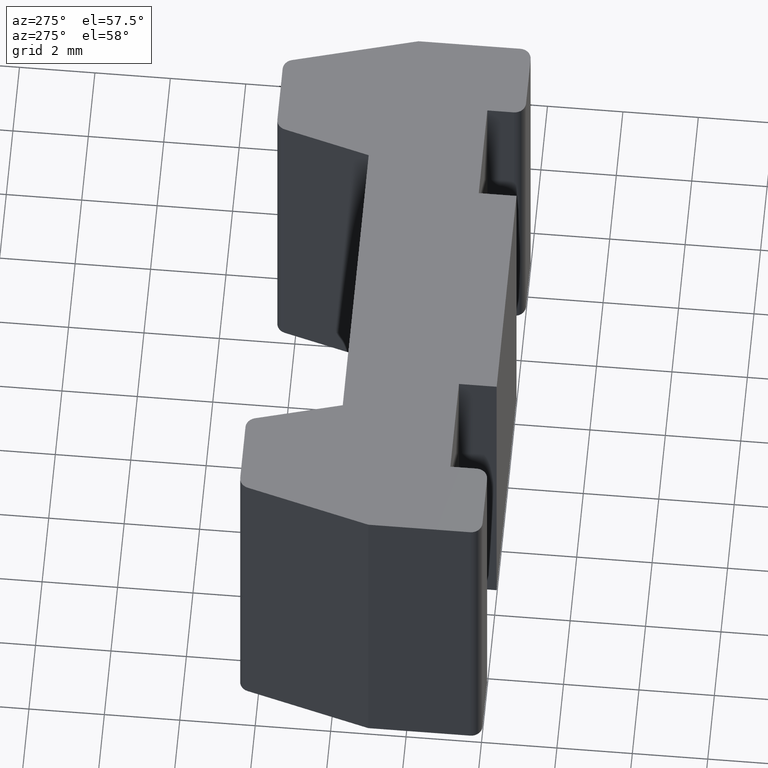
[diagram: clean part render]
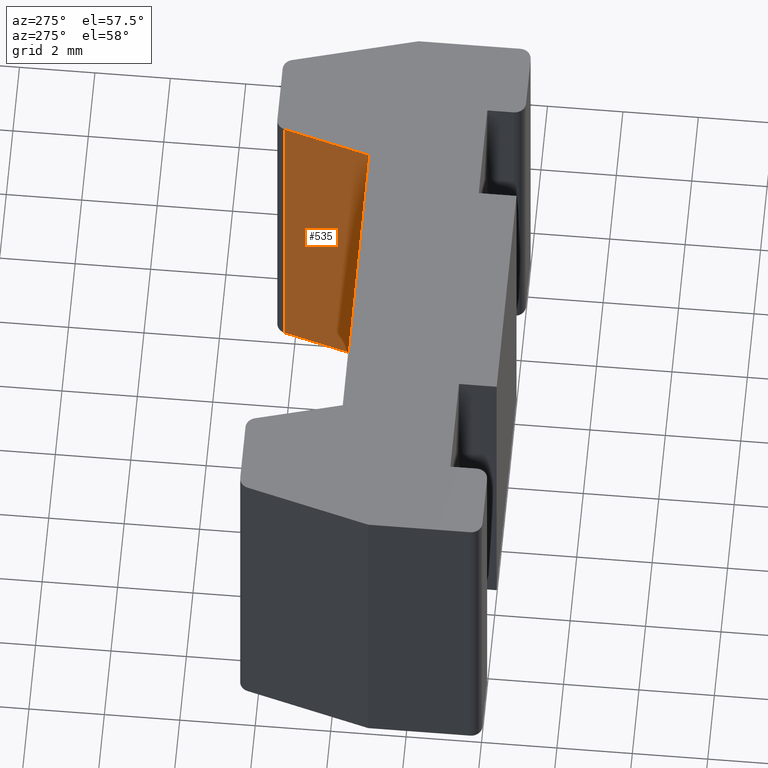
[diagram: same view with one face highlighted and labeled with its STEP entity id]
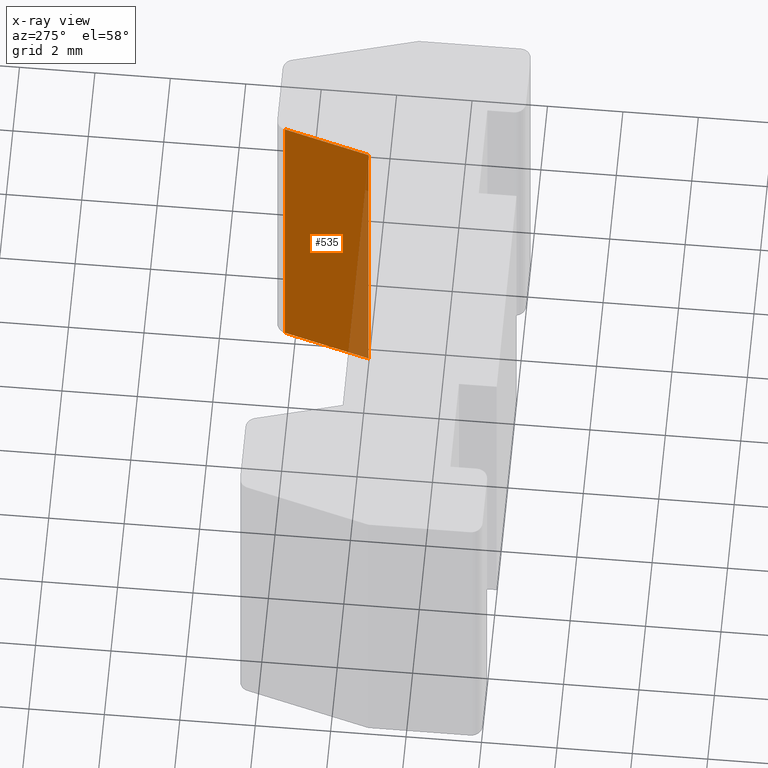
[diagram: x-ray of the same camera — body ghosted, the highlighted face saturated]
A machine part, auxiliary view. The second image highlights one B-rep face of the part: STEP entity #535.
The next image is the same camera in x-ray: the body ghosted, the highlighted face saturated — about 12% of this face is hidden behind the body in this view.
In plain terms, the highlighted planar face has unit normal (-0.9659, 0.2588, 0).
Its self-contained STEP definition (entity closure, byte-faithful):
#19=PLANE('',#600);
#45=FACE_OUTER_BOUND('',#73,.T.);
#73=EDGE_LOOP('',(#423,#424,#425,#426));
#99=LINE('',#802,#161);
#123=LINE('',#867,#185);
#124=LINE('',#870,#186);
#125=LINE('',#871,#187);
#161=VECTOR('',#644,10.);
#185=VECTOR('',#702,10.);
#186=VECTOR('',#705,10.);
#187=VECTOR('',#706,10.);
#243=VERTEX_POINT('',#799);
#244=VERTEX_POINT('',#801);
#268=VERTEX_POINT('',#865);
#269=VERTEX_POINT('',#869);
#296=EDGE_CURVE('',#244,#243,#99,.T.);
#329=EDGE_CURVE('',#244,#268,#123,.T.);
#330=EDGE_CURVE('',#243,#269,#124,.T.);
#331=EDGE_CURVE('',#269,#268,#125,.T.);
#423=ORIENTED_EDGE('',*,*,#329,.F.);
#424=ORIENTED_EDGE('',*,*,#296,.T.);
#425=ORIENTED_EDGE('',*,*,#330,.T.);
#426=ORIENTED_EDGE('',*,*,#331,.T.);
#535=ADVANCED_FACE('',(#45),#19,.T.);
#600=AXIS2_PLACEMENT_3D('',#868,#703,#704);
#644=DIRECTION('',(-0.258819045102521,-0.965925826289068,0.));
#702=DIRECTION('',(0.,0.,1.));
#703=DIRECTION('center_axis',(-0.965925826289068,0.258819045102521,0.));
#704=DIRECTION('ref_axis',(0.,0.,1.));
#705=DIRECTION('',(0.,0.,1.));
#706=DIRECTION('',(0.258819045102521,0.965925826289068,0.));
#799=CARTESIAN_POINT('',(11.5304491924311,4.,0.));
#801=CARTESIAN_POINT('',(12.1407425220159,6.27764571353076,0.));
#802=CARTESIAN_POINT('',(12.2003221735089,6.5,0.));
#865=CARTESIAN_POINT('',(12.1407425220159,6.27764571353076,10.));
#867=CARTESIAN_POINT('',(12.1407425220159,6.27764571353076,0.));
#868=CARTESIAN_POINT('Origin',(11.5304491924311,4.,0.));
#869=CARTESIAN_POINT('',(11.5304491924311,4.,10.));
#870=CARTESIAN_POINT('',(11.5304491924311,4.,0.));
#871=CARTESIAN_POINT('',(12.2003221735089,6.5,10.));